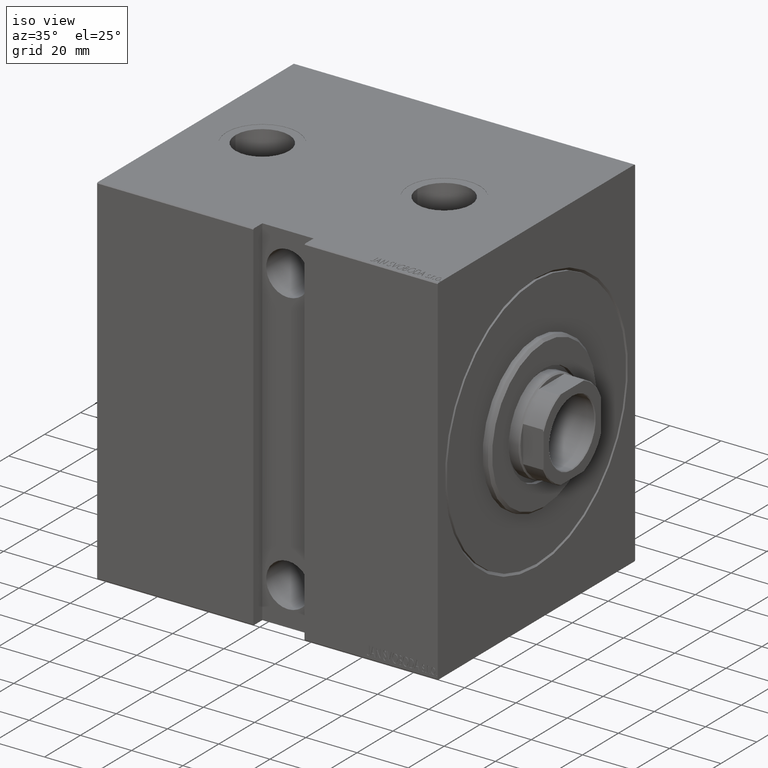
[diagram: clean part render]
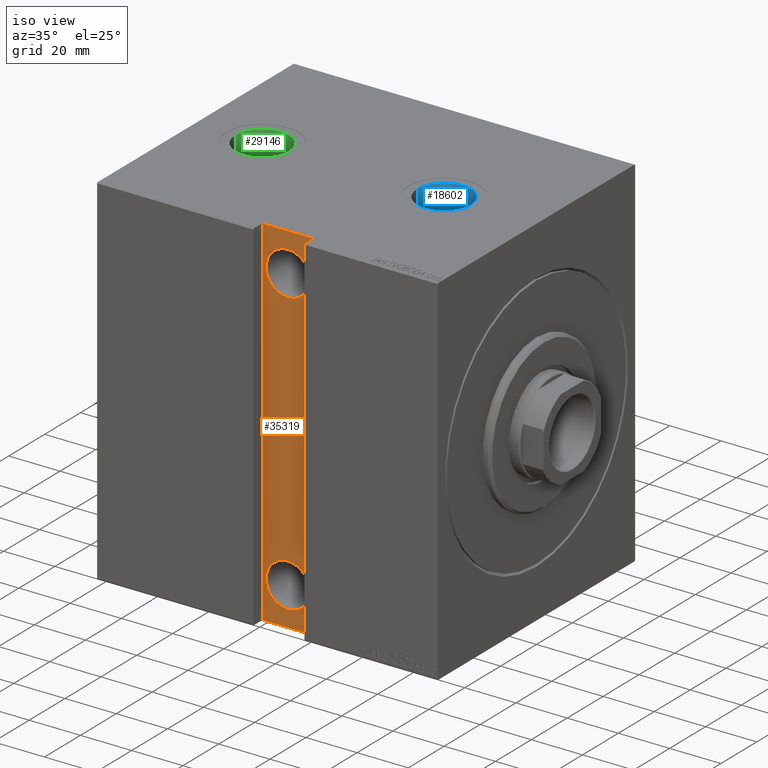
[diagram: same view with three faces highlighted in distinct colors, each labeled with its STEP entity id]
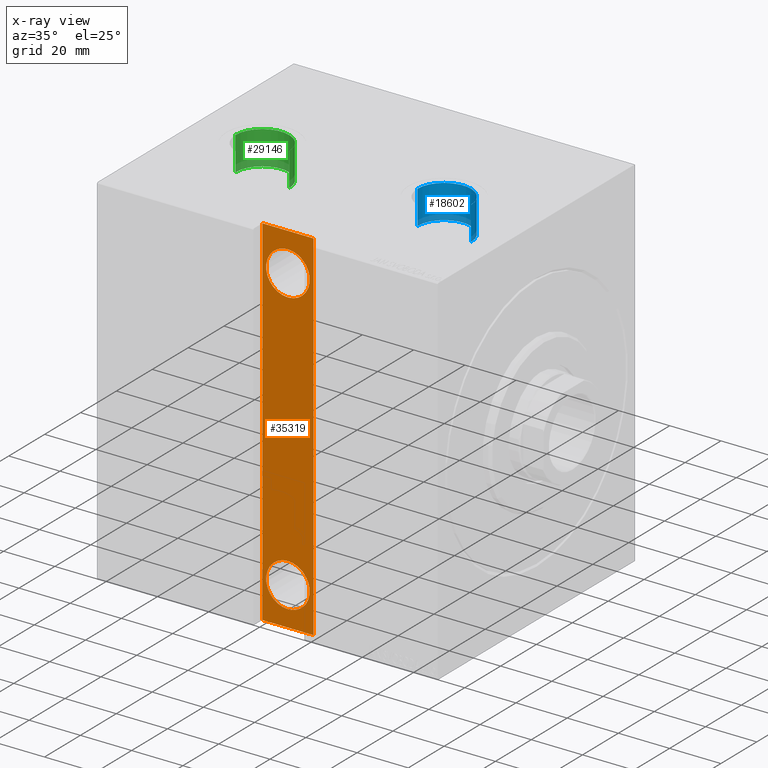
[diagram: x-ray of the same camera — body ghosted, the three highlighted faces saturated]
A machine part, iso view with three faces highlighted in distinct colors.
The next image is the same camera in x-ray (body ghosted, the three faces saturated) — at least one of them is partly hidden behind the body in this view.
Their STEP definitions:

[orange] entity #35319 — the highlighted planar face has unit normal (0, 1, 0).
#566 = VERTEX_POINT ( 'NONE', #7510 ) ;
#875 = VERTEX_POINT ( 'NONE', #11646 ) ;
#2406 = EDGE_CURVE ( 'NONE', #37874, #5902, #4769, .T. ) ;
#3784 = VERTEX_POINT ( 'NONE', #27120 ) ;
#4727 = EDGE_CURVE ( 'NONE', #566, #875, #19531, .T. ) ;
#4769 = CIRCLE ( 'NONE', #27530, 8.500000000000007105 ) ;
#4834 = LINE ( 'NONE', #32023, #43736 ) ;
#5713 = DIRECTION ( 'NONE',  ( 0.000000000000000000, 0.000000000000000000, -1.000000000000000000 ) ) ;
#5902 = VERTEX_POINT ( 'NONE', #9075 ) ;
#7051 = DIRECTION ( 'NONE',  ( 0.000000000000000000, -1.000000000000000000, 0.000000000000000000 ) ) ;
#7264 = CARTESIAN_POINT ( 'NONE',  ( 62.00000000000002132, 50.00000000000000711, -55.00000000000000711 ) ) ;
#7510 = CARTESIAN_POINT ( 'NONE',  ( 72.00000000000002842, 50.00000000000001421, -70.00000000000001421 ) ) ;
#7742 = EDGE_LOOP ( 'NONE', ( #25228, #11269 ) ) ;
#8861 = FACE_BOUND ( 'NONE', #7742, .T. ) ;
#9015 = EDGE_CURVE ( 'NONE', #5902, #37874, #11246, .T. ) ;
#9075 = CARTESIAN_POINT ( 'NONE',  ( 62.00000000000002132, 50.00000000000000711, 46.50000000000000000 ) ) ;
#9498 = CARTESIAN_POINT ( 'NONE',  ( 72.00000000000001421, 50.00000000000000711, -70.00000000000001421 ) ) ;
#10391 = AXIS2_PLACEMENT_3D ( 'NONE', #18234, #11329, #25775 ) ;
#10633 = ORIENTED_EDGE ( 'NONE', *, *, #42560, .T. ) ;
#11056 = VERTEX_POINT ( 'NONE', #13309 ) ;
#11246 = CIRCLE ( 'NONE', #24751, 8.500000000000007105 ) ;
#11269 = ORIENTED_EDGE ( 'NONE', *, *, #9015, .T. ) ;
#11329 = DIRECTION ( 'NONE',  ( 0.000000000000000000, -1.000000000000000000, 0.000000000000000000 ) ) ;
#11646 = CARTESIAN_POINT ( 'NONE',  ( 51.99999999999999289, 50.00000000000000711, -70.00000000000001421 ) ) ;
#13254 = CARTESIAN_POINT ( 'NONE',  ( 62.00000000000002132, 50.00000000000000711, 55.00000000000000711 ) ) ;
#13309 = CARTESIAN_POINT ( 'NONE',  ( 62.00000000000002132, 50.00000000000000711, -63.50000000000001421 ) ) ;
#15379 = ORIENTED_EDGE ( 'NONE', *, *, #31559, .T. ) ;
#15910 = CARTESIAN_POINT ( 'NONE',  ( 62.00000000000002132, 50.00000000000000711, -46.50000000000000000 ) ) ;
#17391 = CARTESIAN_POINT ( 'NONE',  ( 72.00000000000001421, 50.00000000000000711, -70.00000000000001421 ) ) ;
#17695 = DIRECTION ( 'NONE',  ( 0.000000000000000000, -1.000000000000000000, 0.000000000000000000 ) ) ;
#18234 = CARTESIAN_POINT ( 'NONE',  ( 0.000000000000000000, 50.00000000000000711, 0.000000000000000000 ) ) ;
#18355 = DIRECTION ( 'NONE',  ( 0.000000000000000000, 0.000000000000000000, -1.000000000000000000 ) ) ;
#19171 = CARTESIAN_POINT ( 'NONE',  ( 62.00000000000002132, 50.00000000000000711, -55.00000000000000711 ) ) ;
#19531 = LINE ( 'NONE', #9498, #38950 ) ;
#20030 = VERTEX_POINT ( 'NONE', #15910 ) ;
#21169 = CARTESIAN_POINT ( 'NONE',  ( 72.00000000000002842, 50.00000000000000711, 70.00000000000012790 ) ) ;
#21865 = EDGE_CURVE ( 'NONE', #11056, #20030, #35942, .T. ) ;
#22112 = ORIENTED_EDGE ( 'NONE', *, *, #41249, .T. ) ;
#23694 = EDGE_CURVE ( 'NONE', #875, #3784, #41830, .T. ) ;
#23747 = ORIENTED_EDGE ( 'NONE', *, *, #4727, .T. ) ;
#23963 = DIRECTION ( 'NONE',  ( 0.000000000000000000, 0.000000000000000000, -1.000000000000000000 ) ) ;
#24599 = CARTESIAN_POINT ( 'NONE',  ( 62.00000000000002132, 50.00000000000000711, 63.50000000000001421 ) ) ;
#24751 = AXIS2_PLACEMENT_3D ( 'NONE', #13254, #26831, #18355 ) ;
#24885 = CARTESIAN_POINT ( 'NONE',  ( 51.99999999999999289, 50.00000000000000711, -70.00000000000001421 ) ) ;
#25228 = ORIENTED_EDGE ( 'NONE', *, *, #2406, .T. ) ;
#25775 = DIRECTION ( 'NONE',  ( 0.000000000000000000, -0.000000000000000000, -1.000000000000000000 ) ) ;
#26539 = VECTOR ( 'NONE', #38490, 1000.000000000000000 ) ;
#26831 = DIRECTION ( 'NONE',  ( 0.000000000000000000, -1.000000000000000000, 0.000000000000000000 ) ) ;
#27120 = CARTESIAN_POINT ( 'NONE',  ( 52.00000000000001421, 50.00000000000000711, 70.00000000000012790 ) ) ;
#27183 = DIRECTION ( 'NONE',  ( -9.912705577010315689E-17, -0.000000000000000000, -1.000000000000000000 ) ) ;
#27530 = AXIS2_PLACEMENT_3D ( 'NONE', #40001, #33555, #5713 ) ;
#27911 = ORIENTED_EDGE ( 'NONE', *, *, #21865, .T. ) ;
#27918 = DIRECTION ( 'NONE',  ( 0.000000000000000000, 0.000000000000000000, -1.000000000000000000 ) ) ;
#28349 = CIRCLE ( 'NONE', #38331, 8.500000000000007105 ) ;
#28644 = DIRECTION ( 'NONE',  ( 1.000000000000000000, -0.000000000000000000, -0.000000000000000000 ) ) ;
#31559 = EDGE_CURVE ( 'NONE', #3784, #33033, #4834, .T. ) ;
#32023 = CARTESIAN_POINT ( 'NONE',  ( 72.00000000000002842, 50.00000000000000711, 70.00000000000012790 ) ) ;
#32560 = EDGE_LOOP ( 'NONE', ( #35016, #15379, #22112, #23747 ) ) ;
#33033 = VERTEX_POINT ( 'NONE', #21169 ) ;
#33555 = DIRECTION ( 'NONE',  ( 0.000000000000000000, -1.000000000000000000, 0.000000000000000000 ) ) ;
#34336 = LINE ( 'NONE', #17391, #42580 ) ;
#35016 = ORIENTED_EDGE ( 'NONE', *, *, #23694, .T. ) ;
#35215 = AXIS2_PLACEMENT_3D ( 'NONE', #19171, #17695, #27918 ) ;
#35319 = ADVANCED_FACE ( 'NONE', ( #8861, #35621, #38516 ), #35407, .F. ) ;
#35407 = PLANE ( 'NONE',  #10391 ) ;
#35621 = FACE_BOUND ( 'NONE', #41826, .T. ) ;
#35942 = CIRCLE ( 'NONE', #35215, 8.500000000000007105 ) ;
#36039 = DIRECTION ( 'NONE',  ( -1.000000000000000000, 0.000000000000000000, 0.000000000000000000 ) ) ;
#37874 = VERTEX_POINT ( 'NONE', #24599 ) ;
#38331 = AXIS2_PLACEMENT_3D ( 'NONE', #7264, #7051, #23963 ) ;
#38490 = DIRECTION ( 'NONE',  ( 1.486905836551547353E-16, 0.000000000000000000, 1.000000000000000000 ) ) ;
#38516 = FACE_OUTER_BOUND ( 'NONE', #32560, .T. ) ;
#38950 = VECTOR ( 'NONE', #36039, 1000.000000000000000 ) ;
#40001 = CARTESIAN_POINT ( 'NONE',  ( 62.00000000000002132, 50.00000000000000711, 55.00000000000000711 ) ) ;
#41249 = EDGE_CURVE ( 'NONE', #33033, #566, #34336, .T. ) ;
#41826 = EDGE_LOOP ( 'NONE', ( #10633, #27911 ) ) ;
#41830 = LINE ( 'NONE', #24885, #26539 ) ;
#42560 = EDGE_CURVE ( 'NONE', #20030, #11056, #28349, .T. ) ;
#42580 = VECTOR ( 'NONE', #27183, 1000.000000000000000 ) ;
#43736 = VECTOR ( 'NONE', #28644, 1000.000000000000000 ) ;

[blue] entity #18602 — the highlighted cylindrical surface (edge-blend (fillet) strip) has radius 10.48 mm, axis along (0, 0, 1).
#1920 = CARTESIAN_POINT ( 'NONE',  ( 46.47999999999999687, -8.831319514063746929E-15, 56.74000000000000909 ) ) ;
#2794 = VERTEX_POINT ( 'NONE', #13868 ) ;
#4590 = VERTEX_POINT ( 'NONE', #28658 ) ;
#4896 = CARTESIAN_POINT ( 'NONE',  ( 25.52000000000000313, -7.547889668557321440E-15, 69.90000000000000568 ) ) ;
#5055 = LINE ( 'NONE', #22191, #25049 ) ;
#5596 = EDGE_CURVE ( 'NONE', #28963, #2794, #42538, .T. ) ;
#8238 = CARTESIAN_POINT ( 'NONE',  ( 36.00000000000000000, -8.831319514063746929E-15, 56.74000000000000909 ) ) ;
#9984 = DIRECTION ( 'NONE',  ( 1.000000000000000000, 0.000000000000000000, 0.000000000000000000 ) ) ;
#11359 = DIRECTION ( 'NONE',  ( 1.000000000000000000, 0.000000000000000000, 0.000000000000000000 ) ) ;
#12016 = EDGE_CURVE ( 'NONE', #27907, #28963, #5055, .T. ) ;
#13250 = ORIENTED_EDGE ( 'NONE', *, *, #23245, .F. ) ;
#13868 = CARTESIAN_POINT ( 'NONE',  ( 46.47999999999999687, -8.831319514063746929E-15, 69.90000000000000568 ) ) ;
#14804 = AXIS2_PLACEMENT_3D ( 'NONE', #30487, #30035, #9984 ) ;
#15270 = ORIENTED_EDGE ( 'NONE', *, *, #27864, .F. ) ;
#17822 = FACE_OUTER_BOUND ( 'NONE', #30489, .T. ) ;
#17973 = DIRECTION ( 'NONE',  ( -0.000000000000000000, -0.000000000000000000, 1.000000000000000000 ) ) ;
#18602 = ADVANCED_FACE ( 'NONE', ( #17822 ), #28496, .F. ) ;
#21108 = CARTESIAN_POINT ( 'NONE',  ( 36.00000000000000000, -8.831319514063746929E-15, 56.74000000000000909 ) ) ;
#22191 = CARTESIAN_POINT ( 'NONE',  ( 25.52000000000000313, -7.547889668557321440E-15, 56.74000000000000909 ) ) ;
#23245 = EDGE_CURVE ( 'NONE', #4590, #2794, #38482, .T. ) ;
#25049 = VECTOR ( 'NONE', #17973, 1000.000000000000000 ) ;
#25475 = DIRECTION ( 'NONE',  ( 1.000000000000000000, 0.000000000000000000, 0.000000000000000000 ) ) ;
#27864 = EDGE_CURVE ( 'NONE', #27907, #4590, #40902, .T. ) ;
#27907 = VERTEX_POINT ( 'NONE', #34717 ) ;
#28496 = CYLINDRICAL_SURFACE ( 'NONE', #37237, 10.47999999999999687 ) ;
#28658 = CARTESIAN_POINT ( 'NONE',  ( 46.47999999999999687, -8.831319514063746929E-15, 56.74000000000000909 ) ) ;
#28665 = VECTOR ( 'NONE', #42248, 1000.000000000000000 ) ;
#28963 = VERTEX_POINT ( 'NONE', #4896 ) ;
#30035 = DIRECTION ( 'NONE',  ( 0.000000000000000000, 0.000000000000000000, 1.000000000000000000 ) ) ;
#30487 = CARTESIAN_POINT ( 'NONE',  ( 36.00000000000000000, -8.831319514063746929E-15, 69.90000000000000568 ) ) ;
#30489 = EDGE_LOOP ( 'NONE', ( #15270, #38345, #41520, #13250 ) ) ;
#31413 = DIRECTION ( 'NONE',  ( -0.000000000000000000, -0.000000000000000000, 1.000000000000000000 ) ) ;
#34525 = AXIS2_PLACEMENT_3D ( 'NONE', #21108, #35970, #25475 ) ;
#34717 = CARTESIAN_POINT ( 'NONE',  ( 25.52000000000000313, -7.547889668557321440E-15, 56.74000000000000909 ) ) ;
#35970 = DIRECTION ( 'NONE',  ( 0.000000000000000000, 0.000000000000000000, 1.000000000000000000 ) ) ;
#37237 = AXIS2_PLACEMENT_3D ( 'NONE', #8238, #31413, #11359 ) ;
#38345 = ORIENTED_EDGE ( 'NONE', *, *, #12016, .T. ) ;
#38482 = LINE ( 'NONE', #1920, #28665 ) ;
#40902 = CIRCLE ( 'NONE', #34525, 10.47999999999999687 ) ;
#41520 = ORIENTED_EDGE ( 'NONE', *, *, #5596, .T. ) ;
#42248 = DIRECTION ( 'NONE',  ( -0.000000000000000000, -0.000000000000000000, 1.000000000000000000 ) ) ;
#42538 = CIRCLE ( 'NONE', #14804, 10.47999999999999687 ) ;

[green] entity #29146 — the highlighted cylindrical surface (edge-blend (fillet) strip) has radius 10.48 mm, axis along (0, 0, 1).
#644 = LINE ( 'NONE', #21558, #11973 ) ;
#1274 = VECTOR ( 'NONE', #23902, 1000.000000000000000 ) ;
#1289 = DIRECTION ( 'NONE',  ( -0.000000000000000000, -0.000000000000000000, 1.000000000000000000 ) ) ;
#1762 = CARTESIAN_POINT ( 'NONE',  ( 107.0000000000000142, -8.831319514063746929E-15, 56.74000000000000909 ) ) ;
#5508 = DIRECTION ( 'NONE',  ( 1.000000000000000000, 0.000000000000000000, 0.000000000000000000 ) ) ;
#6460 = EDGE_CURVE ( 'NONE', #13512, #10566, #644, .T. ) ;
#9099 = CIRCLE ( 'NONE', #36141, 10.48000000000000398 ) ;
#9633 = AXIS2_PLACEMENT_3D ( 'NONE', #15292, #39358, #5508 ) ;
#10566 = VERTEX_POINT ( 'NONE', #39009 ) ;
#10975 = LINE ( 'NONE', #17877, #1274 ) ;
#10992 = ORIENTED_EDGE ( 'NONE', *, *, #41086, .T. ) ;
#11973 = VECTOR ( 'NONE', #1289, 1000.000000000000000 ) ;
#13512 = VERTEX_POINT ( 'NONE', #37447 ) ;
#14426 = EDGE_LOOP ( 'NONE', ( #39054, #10992, #24861, #27820 ) ) ;
#15292 = CARTESIAN_POINT ( 'NONE',  ( 107.0000000000000142, -8.831319514063746929E-15, 56.74000000000000909 ) ) ;
#15796 = EDGE_CURVE ( 'NONE', #21142, #10566, #25904, .T. ) ;
#16377 = CARTESIAN_POINT ( 'NONE',  ( 96.52000000000001023, -7.547889668557319863E-15, 56.74000000000000909 ) ) ;
#17877 = CARTESIAN_POINT ( 'NONE',  ( 96.52000000000001023, -7.547889668557319863E-15, 56.74000000000000909 ) ) ;
#18865 = FACE_OUTER_BOUND ( 'NONE', #14426, .T. ) ;
#20968 = CARTESIAN_POINT ( 'NONE',  ( 96.52000000000001023, -7.547889668557319863E-15, 69.90000000000000568 ) ) ;
#21142 = VERTEX_POINT ( 'NONE', #20968 ) ;
#21558 = CARTESIAN_POINT ( 'NONE',  ( 117.4800000000000182, -8.831319514063746929E-15, 56.74000000000000909 ) ) ;
#22041 = DIRECTION ( 'NONE',  ( 0.000000000000000000, 0.000000000000000000, 1.000000000000000000 ) ) ;
#23902 = DIRECTION ( 'NONE',  ( -0.000000000000000000, -0.000000000000000000, 1.000000000000000000 ) ) ;
#24861 = ORIENTED_EDGE ( 'NONE', *, *, #15796, .T. ) ;
#25904 = CIRCLE ( 'NONE', #35155, 10.48000000000000398 ) ;
#27820 = ORIENTED_EDGE ( 'NONE', *, *, #6460, .F. ) ;
#28851 = DIRECTION ( 'NONE',  ( 0.000000000000000000, 0.000000000000000000, 1.000000000000000000 ) ) ;
#29146 = ADVANCED_FACE ( 'NONE', ( #18865 ), #38707, .F. ) ;
#35155 = AXIS2_PLACEMENT_3D ( 'NONE', #38896, #28851, #35352 ) ;
#35352 = DIRECTION ( 'NONE',  ( 1.000000000000000000, 0.000000000000000000, 0.000000000000000000 ) ) ;
#35768 = VERTEX_POINT ( 'NONE', #16377 ) ;
#36141 = AXIS2_PLACEMENT_3D ( 'NONE', #1762, #22041, #42534 ) ;
#37447 = CARTESIAN_POINT ( 'NONE',  ( 117.4800000000000182, -8.831319514063746929E-15, 56.74000000000000909 ) ) ;
#38707 = CYLINDRICAL_SURFACE ( 'NONE', #9633, 10.48000000000000398 ) ;
#38896 = CARTESIAN_POINT ( 'NONE',  ( 107.0000000000000142, -8.831319514063746929E-15, 69.90000000000000568 ) ) ;
#39009 = CARTESIAN_POINT ( 'NONE',  ( 117.4800000000000182, -8.831319514063746929E-15, 69.90000000000000568 ) ) ;
#39054 = ORIENTED_EDGE ( 'NONE', *, *, #40246, .F. ) ;
#39358 = DIRECTION ( 'NONE',  ( -0.000000000000000000, -0.000000000000000000, 1.000000000000000000 ) ) ;
#40246 = EDGE_CURVE ( 'NONE', #35768, #13512, #9099, .T. ) ;
#41086 = EDGE_CURVE ( 'NONE', #35768, #21142, #10975, .T. ) ;
#42534 = DIRECTION ( 'NONE',  ( 1.000000000000000000, 0.000000000000000000, 0.000000000000000000 ) ) ;